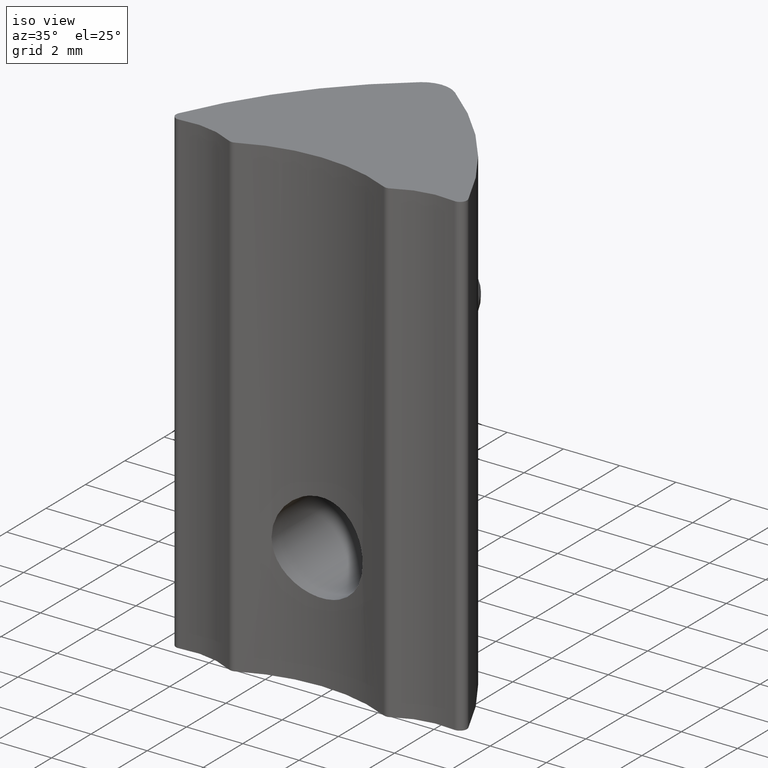
[diagram: clean part render]
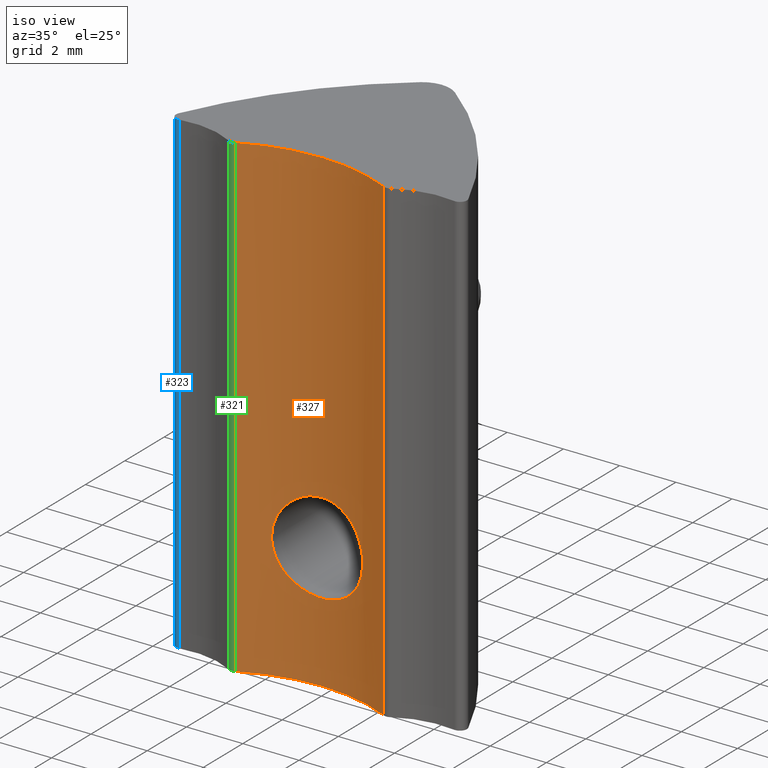
[diagram: same view with three faces highlighted in distinct colors, each labeled with its STEP entity id]
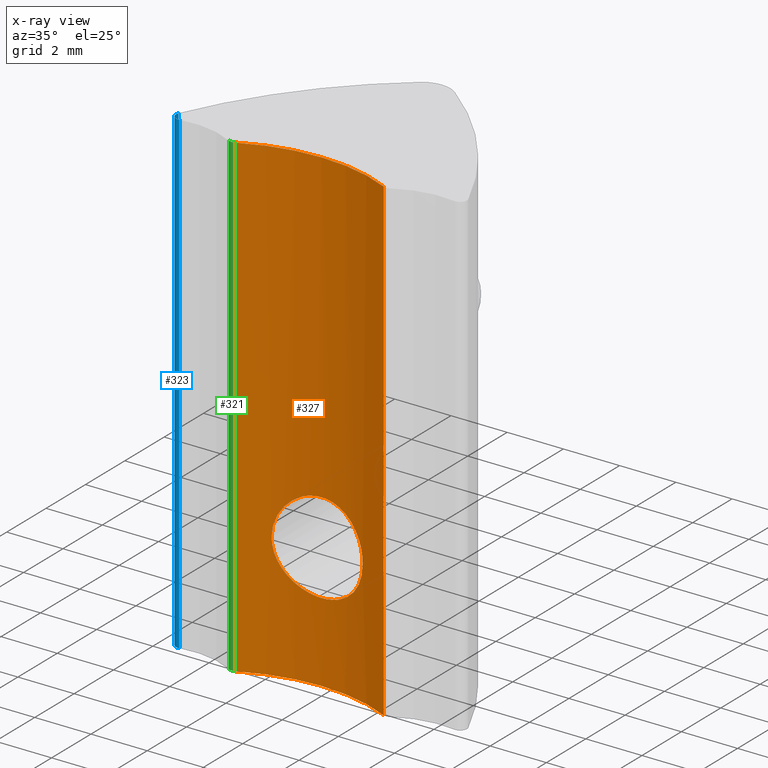
[diagram: x-ray of the same camera — body ghosted, the three highlighted faces saturated]
A machine part, iso view with three faces highlighted in distinct colors.
The next image is the same camera in x-ray (body ghosted, the three faces saturated) — at least one of them is partly hidden behind the body in this view.
Their STEP definitions:

[orange] entity #327 — the highlighted cylindrical surface (partial cylindrical patch) has radius 6 mm, axis along (0, 0, 1).
#25=LINE('',#693,#40);
#30=LINE('',#723,#45);
#40=VECTOR('',#433,10.);
#45=VECTOR('',#470,10.);
#58=CYLINDRICAL_SURFACE('',#385,6.);
#60=FACE_BOUND('',#105,.T.);
#69=B_SPLINE_CURVE_WITH_KNOTS('',3,(#612,#613,#614,#615,#616,#617,#618,
#619,#620,#621,#622,#623,#624,#625,#626,#627,#628,#629),.UNSPECIFIED.,.F.,
 .F.,(4,2,2,2,2,2,2,2,4),(0.,0.0613970513798135,0.122794102759627,0.184179325210304,
0.245564547660981,0.306949770111658,0.368334992562336,0.429732043942149,
0.491129095321963),.UNSPECIFIED.);
#70=B_SPLINE_CURVE_WITH_KNOTS('',3,(#630,#631,#632,#633,#634,#635,#636,
#637,#638,#639,#640,#641,#642,#643,#644,#645,#646,#647),.UNSPECIFIED.,.F.,
 .F.,(4,2,2,2,2,2,2,2,4),(0.491129095321963,0.552526146701776,0.61392319808159,
0.675308420532267,0.736693642982944,0.798078865433621,0.859464087884298,
0.920861139264112,0.982258190643925),.UNSPECIFIED.);
#87=FACE_OUTER_BOUND('',#104,.T.);
#104=EDGE_LOOP('',(#285,#286,#287,#288));
#105=EDGE_LOOP('',(#289,#290));
#127=CIRCLE('',#386,6.);
#128=CIRCLE('',#387,6.);
#144=VERTEX_POINT('',#609);
#145=VERTEX_POINT('',#611);
#152=VERTEX_POINT('',#689);
#154=VERTEX_POINT('',#692);
#162=VERTEX_POINT('',#719);
#163=VERTEX_POINT('',#721);
#181=EDGE_CURVE('',#145,#144,#69,.T.);
#182=EDGE_CURVE('',#144,#145,#70,.T.);
#194=EDGE_CURVE('',#152,#154,#25,.T.);
#210=EDGE_CURVE('',#162,#163,#30,.T.);
#211=EDGE_CURVE('',#162,#152,#127,.T.);
#212=EDGE_CURVE('',#154,#163,#128,.T.);
#285=ORIENTED_EDGE('',*,*,#211,.F.);
#286=ORIENTED_EDGE('',*,*,#210,.T.);
#287=ORIENTED_EDGE('',*,*,#212,.F.);
#288=ORIENTED_EDGE('',*,*,#194,.F.);
#289=ORIENTED_EDGE('',*,*,#181,.T.);
#290=ORIENTED_EDGE('',*,*,#182,.T.);
#327=ADVANCED_FACE('',(#87,#60),#58,.F.);
#385=AXIS2_PLACEMENT_3D('',#724,#471,#472);
#386=AXIS2_PLACEMENT_3D('',#725,#473,#474);
#387=AXIS2_PLACEMENT_3D('',#726,#475,#476);
#433=DIRECTION('',(0.,0.,1.));
#470=DIRECTION('',(0.,0.,1.));
#471=DIRECTION('center_axis',(0.,0.,1.));
#472=DIRECTION('ref_axis',(0.44,0.897997772825746,0.));
#473=DIRECTION('center_axis',(0.,0.,1.));
#474=DIRECTION('ref_axis',(0.44,0.897997772825746,0.));
#475=DIRECTION('center_axis',(0.,0.,-1.));
#476=DIRECTION('ref_axis',(0.44,0.897997772825746,0.));
#609=CARTESIAN_POINT('',(1.621,-0.223118574871042,4.45));
#611=CARTESIAN_POINT('',(-1.621,-0.22311857487104,4.45));
#612=CARTESIAN_POINT('Ctrl Pts',(-1.621,-0.22311857487104,4.45));
#613=CARTESIAN_POINT('Ctrl Pts',(-1.621,-0.22311857487104,4.65465683793271));
#614=CARTESIAN_POINT('Ctrl Pts',(-1.57989022002291,-0.211108067963335,4.87221495807274));
#615=CARTESIAN_POINT('Ctrl Pts',(-1.41415632270945,-0.168406344078032,5.27126777198538));
#616=CARTESIAN_POINT('Ctrl Pts',(-1.28958314456802,-0.138404076550138,5.45285704003876));
#617=CARTESIAN_POINT('Ctrl Pts',(-1.00288466076888,-0.0826065201824645,
5.73955552383791));
#618=CARTESIAN_POINT('Ctrl Pts',(-0.82128399497515,-0.0530895641017987,
5.86415018379143));
#619=CARTESIAN_POINT('Ctrl Pts',(-0.422190385607472,-0.011510506912383,
6.02989982661833));
#620=CARTESIAN_POINT('Ctrl Pts',(-0.204617408168922,7.23386796671252E-17,
6.071));
#621=CARTESIAN_POINT('Ctrl Pts',(0.204617408168926,-7.23386796671252E-17,
6.071));
#622=CARTESIAN_POINT('Ctrl Pts',(0.422190385607476,-0.0115105069123828,
6.02989982661833));
#623=CARTESIAN_POINT('Ctrl Pts',(0.821283994975155,-0.0530895641017988,
5.86415018379143));
#624=CARTESIAN_POINT('Ctrl Pts',(1.00288466076888,-0.0826065201824655,5.73955552383791));
#625=CARTESIAN_POINT('Ctrl Pts',(1.28958314456803,-0.138404076550139,5.45285704003876));
#626=CARTESIAN_POINT('Ctrl Pts',(1.41415632270946,-0.168406344078033,5.27126777198538));
#627=CARTESIAN_POINT('Ctrl Pts',(1.57989022002291,-0.211108067963336,4.87221495807274));
#628=CARTESIAN_POINT('Ctrl Pts',(1.621,-0.223118574871041,4.65465683793271));
#629=CARTESIAN_POINT('Ctrl Pts',(1.621,-0.223118574871041,4.45));
#630=CARTESIAN_POINT('Ctrl Pts',(1.621,-0.223118574871041,4.45));
#631=CARTESIAN_POINT('Ctrl Pts',(1.621,-0.223118574871041,4.24534316206729));
#632=CARTESIAN_POINT('Ctrl Pts',(1.57989022002291,-0.211108067963336,4.02778504192726));
#633=CARTESIAN_POINT('Ctrl Pts',(1.41415632270946,-0.168406344078033,3.62873222801462));
#634=CARTESIAN_POINT('Ctrl Pts',(1.28958314456803,-0.138404076550139,3.44714295996124));
#635=CARTESIAN_POINT('Ctrl Pts',(1.00288466076888,-0.0826065201824655,3.16044447616209));
#636=CARTESIAN_POINT('Ctrl Pts',(0.821283994975155,-0.0530895641017988,
3.03584981620857));
#637=CARTESIAN_POINT('Ctrl Pts',(0.422190385607476,-0.0115105069123828,
2.87010017338168));
#638=CARTESIAN_POINT('Ctrl Pts',(0.204617408168926,-8.58785713829746E-17,
2.829));
#639=CARTESIAN_POINT('Ctrl Pts',(-0.204617408168921,8.58785713829746E-17,
2.829));
#640=CARTESIAN_POINT('Ctrl Pts',(-0.422190385607471,-0.011510506912383,
2.87010017338168));
#641=CARTESIAN_POINT('Ctrl Pts',(-0.82128399497515,-0.0530895641017987,
3.03584981620857));
#642=CARTESIAN_POINT('Ctrl Pts',(-1.00288466076888,-0.0826065201824645,
3.16044447616209));
#643=CARTESIAN_POINT('Ctrl Pts',(-1.28958314456802,-0.138404076550138,3.44714295996124));
#644=CARTESIAN_POINT('Ctrl Pts',(-1.41415632270945,-0.168406344078032,3.62873222801462));
#645=CARTESIAN_POINT('Ctrl Pts',(-1.5798902200229,-0.211108067963335,4.02778504192726));
#646=CARTESIAN_POINT('Ctrl Pts',(-1.621,-0.22311857487104,4.24534316206729));
#647=CARTESIAN_POINT('Ctrl Pts',(-1.621,-0.22311857487104,4.45));
#689=CARTESIAN_POINT('',(-2.64,-0.612013363045524,0.));
#692=CARTESIAN_POINT('',(-2.64,-0.612013363045524,17.));
#693=CARTESIAN_POINT('',(-2.64,-0.612013363045524,0.));
#719=CARTESIAN_POINT('',(2.64,-0.612013363045523,0.));
#721=CARTESIAN_POINT('',(2.64,-0.612013363045523,17.));
#723=CARTESIAN_POINT('',(2.64,-0.612013363045523,0.));
#724=CARTESIAN_POINT('Origin',(0.,-6.,0.));
#725=CARTESIAN_POINT('Origin',(0.,-6.,0.));
#726=CARTESIAN_POINT('Origin',(0.,-6.,17.));

[blue] entity #323 — the highlighted cylindrical surface (edge-blend (fillet) strip) has radius 0.25 mm, axis along (0, 0, 1).
#18=LINE('',#577,#33);
#27=LINE('',#702,#42);
#33=VECTOR('',#402,10.);
#42=VECTOR('',#443,10.);
#54=CYLINDRICAL_SURFACE('',#373,0.25);
#83=FACE_OUTER_BOUND('',#100,.T.);
#100=EDGE_LOOP('',(#269,#270,#271,#272));
#119=CIRCLE('',#374,0.25);
#120=CIRCLE('',#375,0.25);
#138=VERTEX_POINT('',#574);
#139=VERTEX_POINT('',#576);
#156=VERTEX_POINT('',#698);
#157=VERTEX_POINT('',#700);
#173=EDGE_CURVE('',#138,#139,#18,.T.);
#199=EDGE_CURVE('',#156,#157,#27,.T.);
#200=EDGE_CURVE('',#156,#138,#119,.T.);
#201=EDGE_CURVE('',#139,#157,#120,.T.);
#269=ORIENTED_EDGE('',*,*,#200,.F.);
#270=ORIENTED_EDGE('',*,*,#199,.T.);
#271=ORIENTED_EDGE('',*,*,#201,.F.);
#272=ORIENTED_EDGE('',*,*,#173,.F.);
#323=ADVANCED_FACE('',(#83),#54,.T.);
#373=AXIS2_PLACEMENT_3D('',#703,#444,#445);
#374=AXIS2_PLACEMENT_3D('',#704,#446,#447);
#375=AXIS2_PLACEMENT_3D('',#705,#448,#449);
#402=DIRECTION('',(0.,0.,1.));
#443=DIRECTION('',(0.,0.,1.));
#444=DIRECTION('center_axis',(0.,0.,1.));
#445=DIRECTION('ref_axis',(0.914724473440414,-0.404078133148971,0.));
#446=DIRECTION('center_axis',(0.,0.,-1.));
#447=DIRECTION('ref_axis',(0.914724473440414,-0.404078133148971,0.));
#448=DIRECTION('center_axis',(0.,0.,1.));
#449=DIRECTION('ref_axis',(0.914724473440414,-0.404078133148971,0.));
#574=CARTESIAN_POINT('',(-5.1536811183601,0.101019533287241,0.));
#576=CARTESIAN_POINT('',(-5.1536811183601,0.101019533287241,17.));
#577=CARTESIAN_POINT('',(-5.1536811183601,0.101019533287241,0.));
#698=CARTESIAN_POINT('',(-4.8825868278265,-0.246375978590002,0.));
#700=CARTESIAN_POINT('',(-4.8825868278265,-0.246375978590002,17.));
#702=CARTESIAN_POINT('',(-4.8825868278265,-0.246375978590002,0.));
#703=CARTESIAN_POINT('Origin',(-4.925,0.,0.));
#704=CARTESIAN_POINT('Origin',(-4.925,0.,0.));
#705=CARTESIAN_POINT('Origin',(-4.925,0.,17.));

[green] entity #321 — the highlighted cylindrical surface (edge-blend (fillet) strip) has radius 0.25 mm, axis along (0, 0, 1).
#25=LINE('',#693,#40);
#26=LINE('',#696,#41);
#40=VECTOR('',#433,10.);
#41=VECTOR('',#436,10.);
#52=CYLINDRICAL_SURFACE('',#367,0.25);
#81=FACE_OUTER_BOUND('',#98,.T.);
#98=EDGE_LOOP('',(#261,#262,#263,#264));
#115=CIRCLE('',#368,0.25);
#116=CIRCLE('',#369,0.25);
#152=VERTEX_POINT('',#689);
#153=VERTEX_POINT('',#690);
#154=VERTEX_POINT('',#692);
#155=VERTEX_POINT('',#694);
#193=EDGE_CURVE('',#152,#153,#115,.T.);
#194=EDGE_CURVE('',#152,#154,#25,.T.);
#195=EDGE_CURVE('',#155,#154,#116,.T.);
#196=EDGE_CURVE('',#153,#155,#26,.T.);
#261=ORIENTED_EDGE('',*,*,#193,.F.);
#262=ORIENTED_EDGE('',*,*,#194,.T.);
#263=ORIENTED_EDGE('',*,*,#195,.F.);
#264=ORIENTED_EDGE('',*,*,#196,.F.);
#321=ADVANCED_FACE('',(#81),#52,.T.);
#367=AXIS2_PLACEMENT_3D('',#688,#429,#430);
#368=AXIS2_PLACEMENT_3D('',#691,#431,#432);
#369=AXIS2_PLACEMENT_3D('',#695,#434,#435);
#429=DIRECTION('center_axis',(0.,0.,1.));
#430=DIRECTION('ref_axis',(0.499578080536772,0.866268862101827,0.));
#431=DIRECTION('center_axis',(0.,0.,-1.));
#432=DIRECTION('ref_axis',(0.499578080536772,0.866268862101827,0.));
#433=DIRECTION('',(0.,0.,1.));
#434=DIRECTION('center_axis',(0.,0.,1.));
#435=DIRECTION('ref_axis',(0.499578080536772,0.866268862101827,0.));
#436=DIRECTION('',(0.,0.,1.));
#688=CARTESIAN_POINT('Origin',(-2.75,-0.387513919839087,0.));
#689=CARTESIAN_POINT('',(-2.64,-0.612013363045524,0.));
#690=CARTESIAN_POINT('',(-2.87489452013419,-0.604081135364544,0.));
#691=CARTESIAN_POINT('Origin',(-2.75,-0.387513919839087,0.));
#692=CARTESIAN_POINT('',(-2.64,-0.612013363045524,17.));
#693=CARTESIAN_POINT('',(-2.64,-0.612013363045524,0.));
#694=CARTESIAN_POINT('',(-2.87489452013419,-0.604081135364544,17.));
#695=CARTESIAN_POINT('Origin',(-2.75,-0.387513919839087,17.));
#696=CARTESIAN_POINT('',(-2.87489452013419,-0.604081135364544,0.));